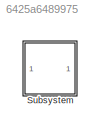
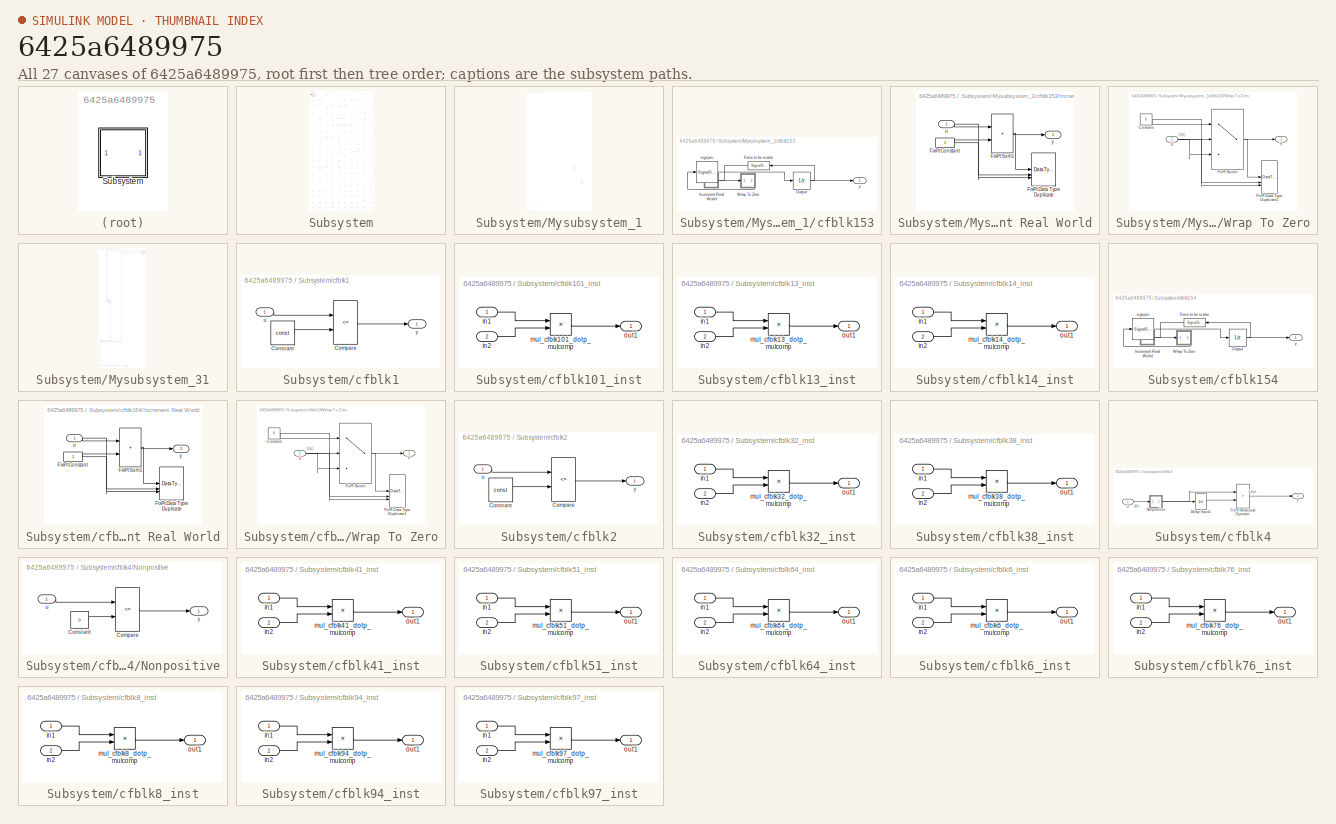
[diagram: thumbnail index - all 27 canvases of the model, root first then tree order]
MODEL slx_6425a6489975
KIND model
CONFIG AbsTol = auto
CONFIG EnableMultiTasking = off
CONFIG FixedStep = auto
CONFIG MaxStep = auto
CONFIG MinStep = auto
CONFIG RelTol = 1e-3
CONFIG SampleTimeConstraint = Unconstrained
CONFIG SolverName = VariableStepAuto
CONFIG StartTime = 0.0
CONFIG StopTime = 10.0
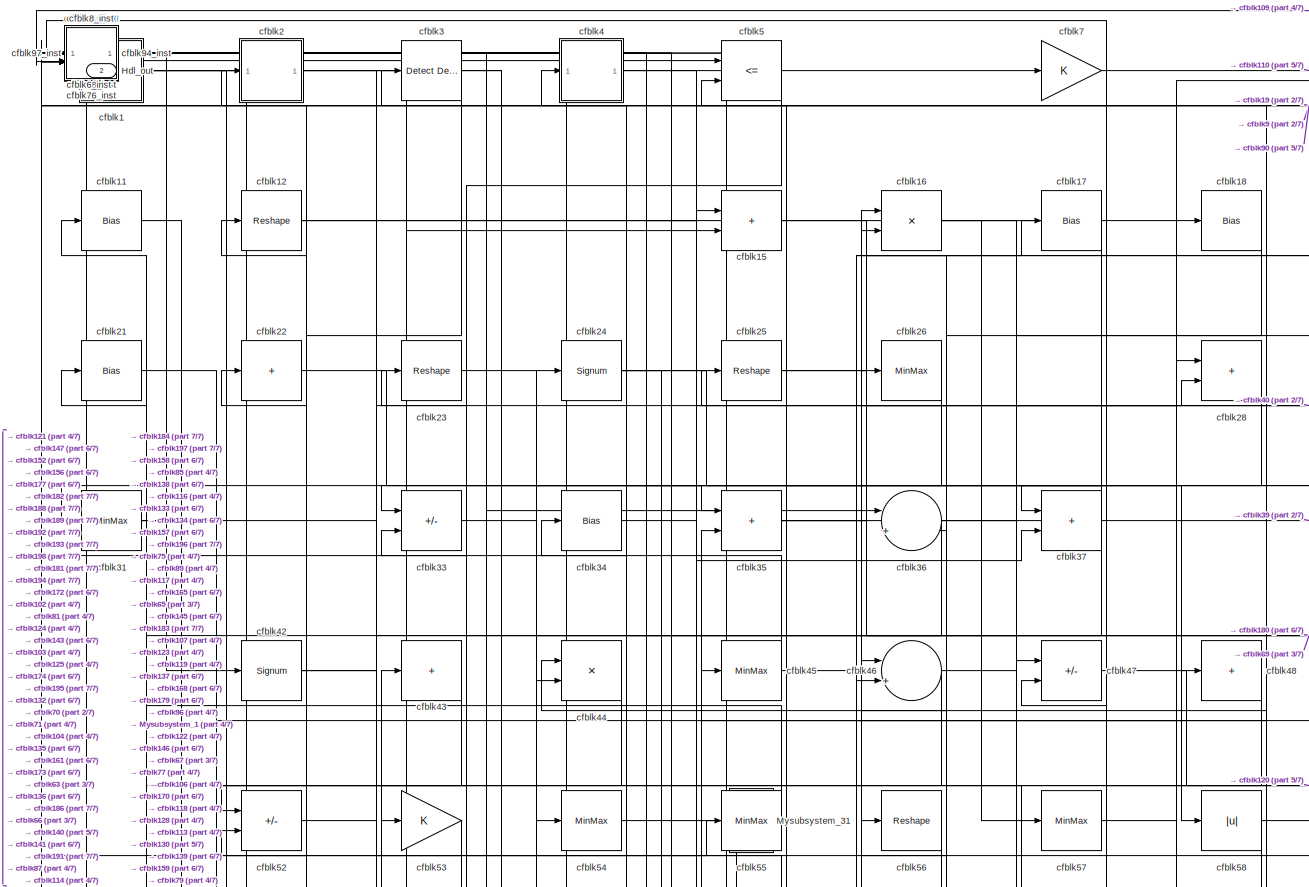
[diagram: Subsystem - part 1/7, full width, top band]
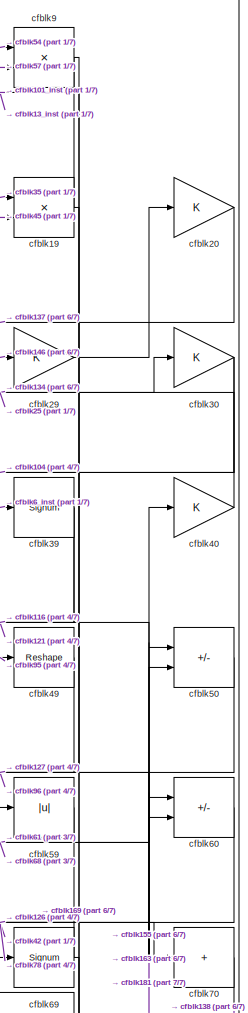
[diagram: Subsystem - part 2/7, top right region]
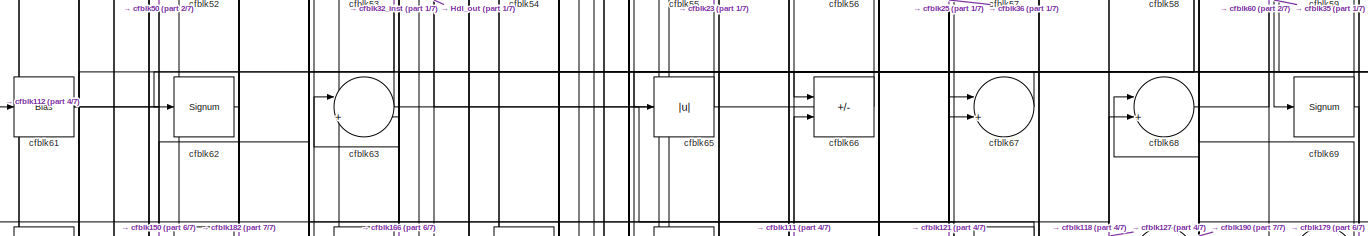
[diagram: Subsystem - part 3/7, full width, middle band]
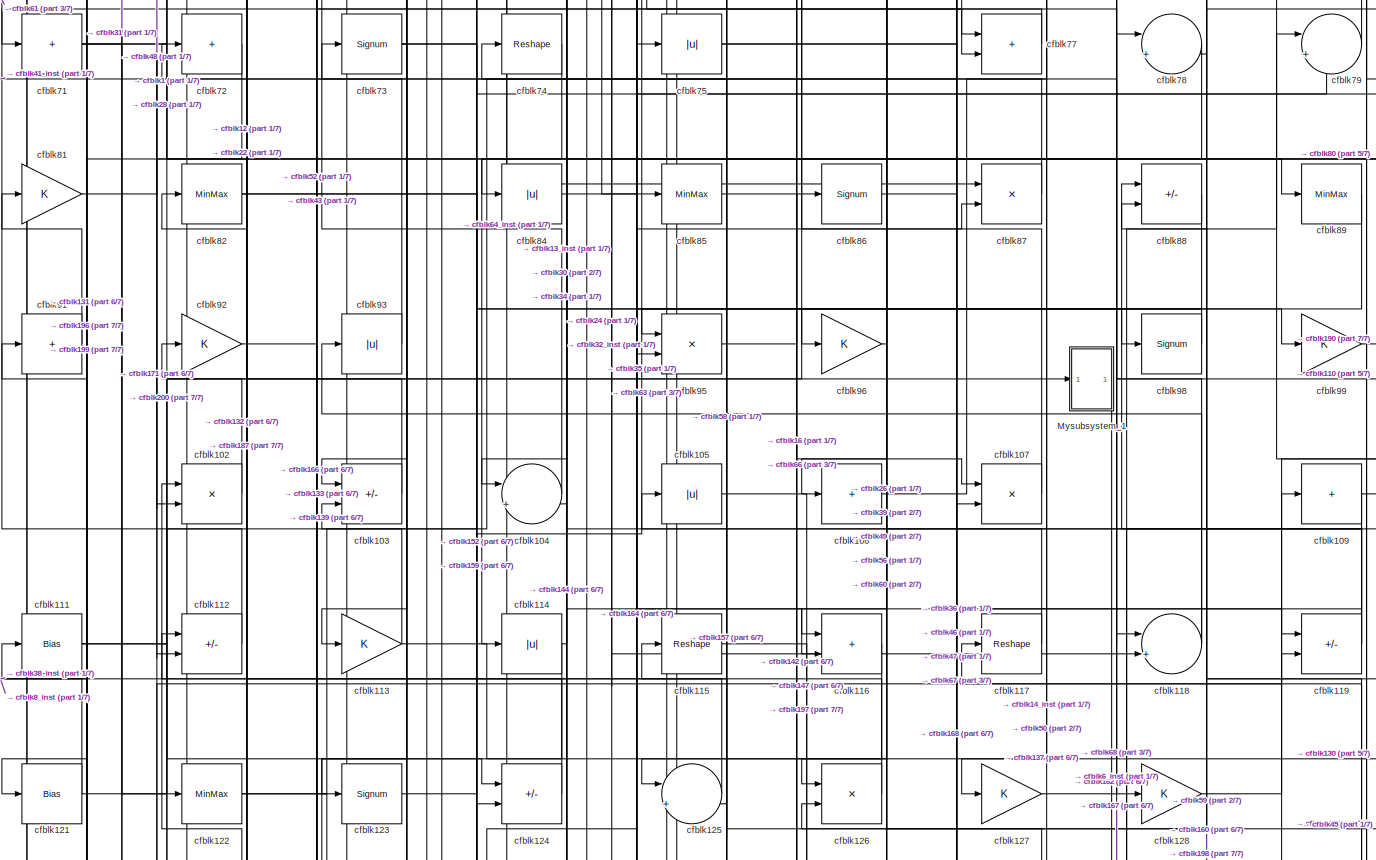
[diagram: Subsystem - part 4/7, full width, middle band]
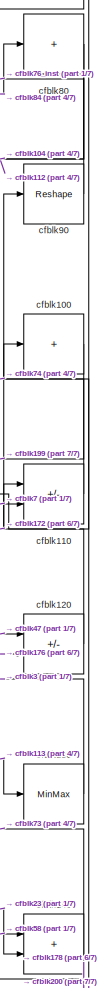
[diagram: Subsystem - part 5/7, middle right region]
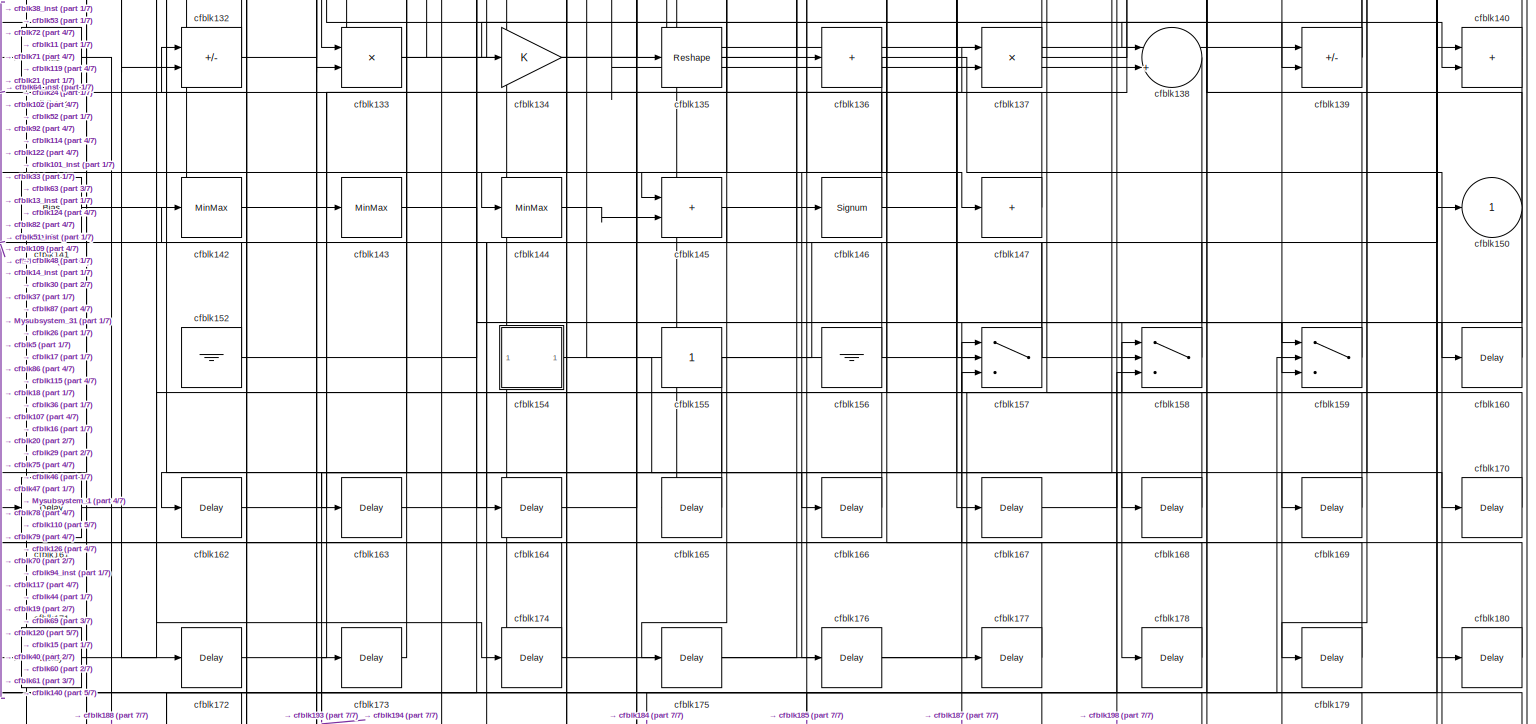
[diagram: Subsystem - part 6/7, full width, bottom band]
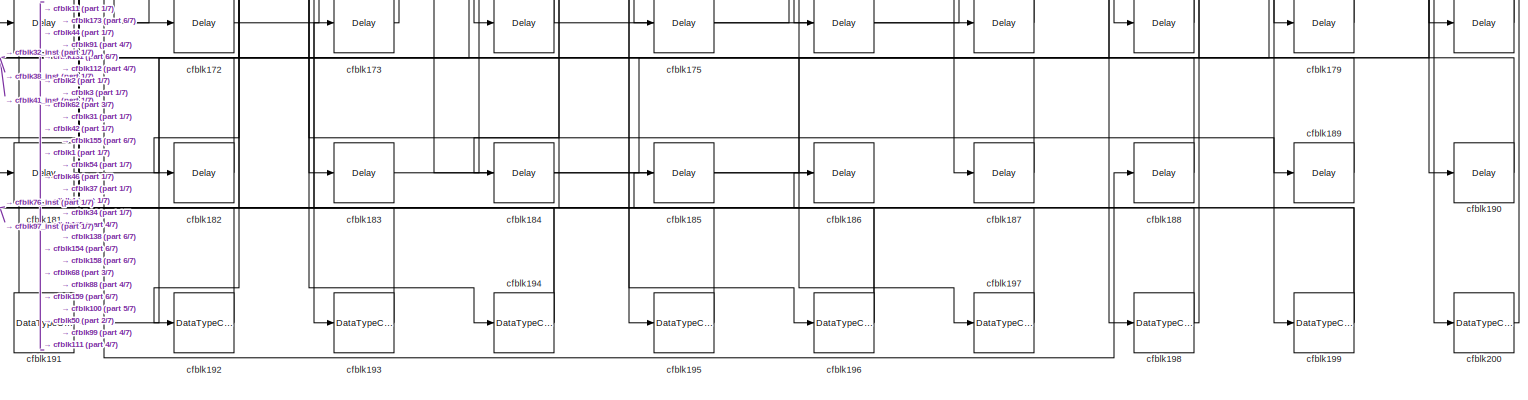
[diagram: Subsystem - part 7/7, full width, bottom band]
BLOCK [SubSystem] Subsystem
BLOCK [Outport] Subsystem/Hdl_out
  OutDataTypeStr = uint8
  Port = 2
  SampleTime = 1
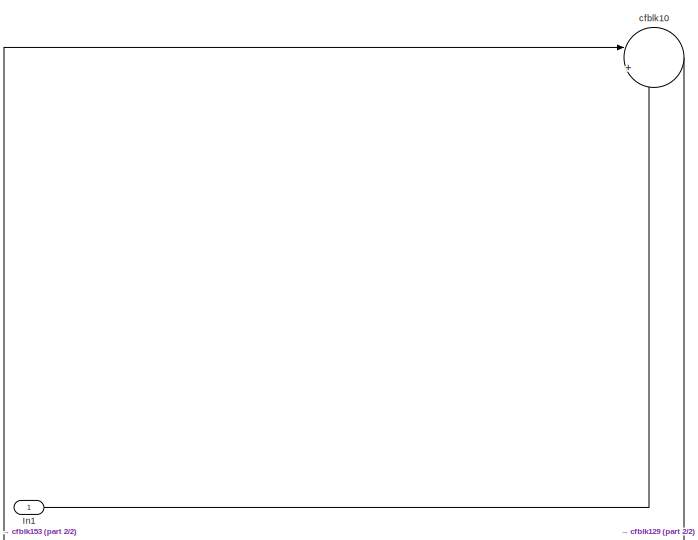
[diagram: Subsystem/Mysubsystem_1 - part 1/2, top right region]
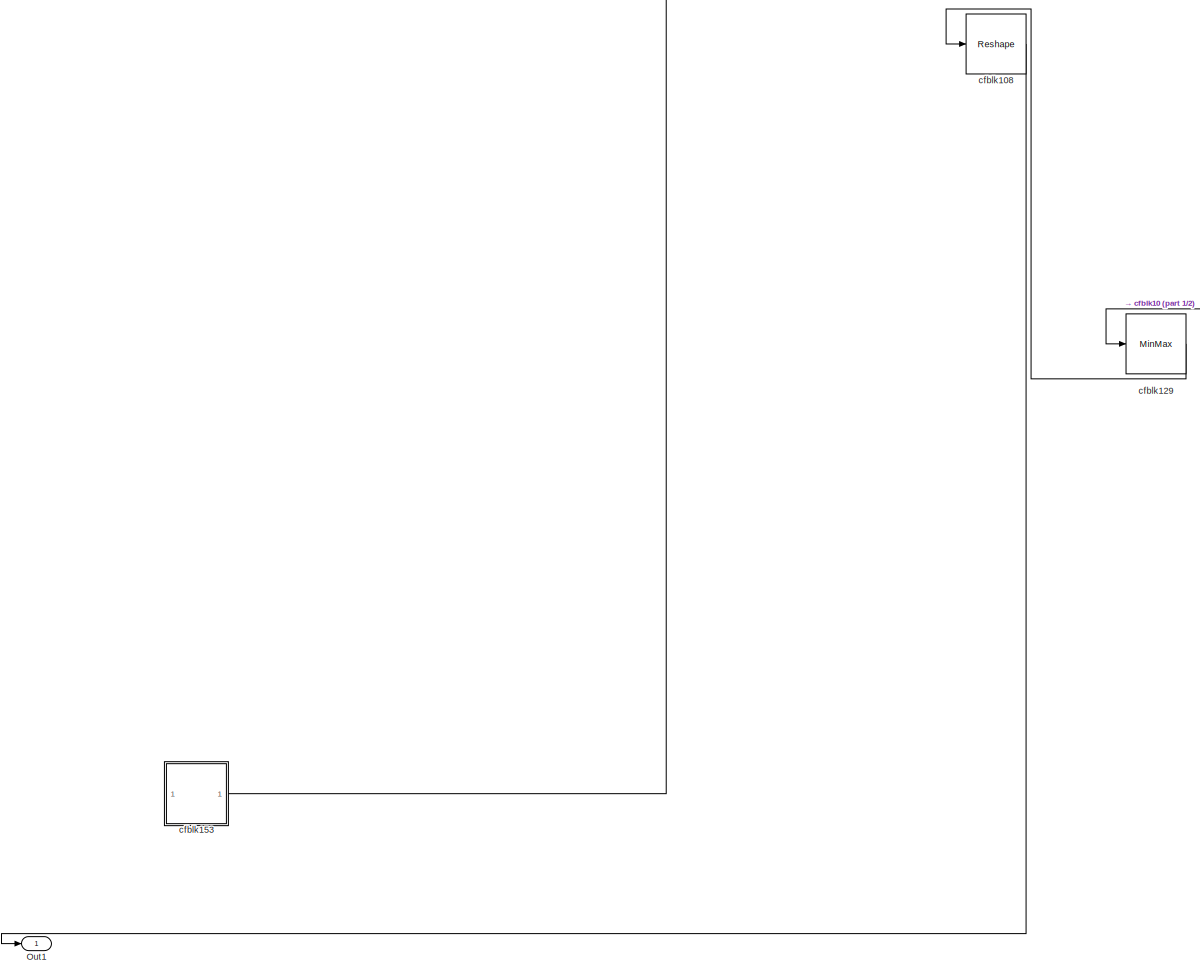
[diagram: Subsystem/Mysubsystem_1 - part 2/2, full width, bottom band]
BLOCK [SubSystem] Subsystem/Mysubsystem_1
BLOCK [Inport] Subsystem/Mysubsystem_1/In1
  OutDataTypeStr = uint8
  PortDimensions = 1
  SampleTime = 1
BLOCK [Outport] Subsystem/Mysubsystem_1/Out1
  SampleTime = 1
BLOCK [Sum] Subsystem/Mysubsystem_1/cfblk10
  Inputs = |++
BLOCK [Reshape] Subsystem/Mysubsystem_1/cfblk108
BLOCK [MinMax] Subsystem/Mysubsystem_1/cfblk129
BLOCK [SubSystem] Subsystem/Mysubsystem_1/cfblk153
BLOCK [SignalSpecification] Subsystem/Mysubsystem_1/cfblk153/Force to be scalar
  Dimensions = 1
  DisableCoverage = on
BLOCK [SubSystem] Subsystem/Mysubsystem_1/cfblk153/Increment Real World
BLOCK [Constant] Subsystem/Mysubsystem_1/cfblk153/Increment Real World/FixPt Constant
  DisableCoverage = on
  OutDataTypeStr = Inherit: Inherit via back propagation
  SampleTime = -1
BLOCK [DataTypeDuplicate] Subsystem/Mysubsystem_1/cfblk153/Increment Real World/FixPt Data Type Duplicate
  DisableCoverage = on
  NumInputPorts = 3
BLOCK [Sum] Subsystem/Mysubsystem_1/cfblk153/Increment Real World/FixPt Sum1
  IconShape = rectangular
  InputSameDT = on
  LockScale = on
  OutDataTypeStr = Inherit: Inherit via back propagation
BLOCK [Inport] Subsystem/Mysubsystem_1/cfblk153/Increment Real World/u
  OutDataTypeStr = uint16
  SampleTime = 1
BLOCK [Outport] Subsystem/Mysubsystem_1/cfblk153/Increment Real World/y
  SampleTime = 1
BLOCK [UnitDelay] Subsystem/Mysubsystem_1/cfblk153/Output
  HasFrameUpgradeWarning = on
  InitialCondition = 0.0
  SampleTime = tsamp
BLOCK [SubSystem] Subsystem/Mysubsystem_1/cfblk153/Wrap To Zero
BLOCK [Constant] Subsystem/Mysubsystem_1/cfblk153/Wrap To Zero/Constant
  DisableCoverage = on
  OutDataTypeStr = Inherit: Inherit via back propagation
  SampleTime = -1
  Value = 0
BLOCK [DataTypeDuplicate] Subsystem/Mysubsystem_1/cfblk153/Wrap To Zero/FixPt Data Type Duplicate1
  DisableCoverage = on
  NumInputPorts = 3
BLOCK [Switch] Subsystem/Mysubsystem_1/cfblk153/Wrap To Zero/FixPt Switch
  Criteria = u2 > Threshold
  InputSameDT = off
  OutDataTypeStr = Inherit: Inherit via back propagation
  SaturateOnIntegerOverflow = off
  Threshold = Threshold
  ZeroCross = off
BLOCK [Inport] Subsystem/Mysubsystem_1/cfblk153/Wrap To Zero/U
  OutDataTypeStr = uint16
  SampleTime = 1
BLOCK [Outport] Subsystem/Mysubsystem_1/cfblk153/Wrap To Zero/Y
  SampleTime = 1
BLOCK [SignalSpecification] Subsystem/Mysubsystem_1/cfblk153/sigspec
  Dimensions = 1
  OutDataTypeStr = uint16
BLOCK [Outport] Subsystem/Mysubsystem_1/cfblk153/y
  SampleTime = 1
BLOCK [SubSystem] Subsystem/Mysubsystem_31
BLOCK [Inport] Subsystem/Mysubsystem_31/In1
  OutDataTypeStr = uint8
  PortDimensions = 1
  SampleTime = 1
BLOCK [Outport] Subsystem/Mysubsystem_31/Out1
  SampleTime = 1
BLOCK [Bias] Subsystem/Mysubsystem_31/cfblk27
  Bias = 0.0
  SaturateOnIntegerOverflow = off
BLOCK [Reshape] Subsystem/Mysubsystem_31/cfblk83
BLOCK [SubSystem] Subsystem/cfblk1
BLOCK [RelationalOperator] Subsystem/cfblk1/Compare
  Operator = <=
  OutDataTypeStr = fixdt(0, 8)
BLOCK [Constant] Subsystem/cfblk1/Constant
  DisableCoverage = on
  OutDataTypeStr = Inherit: Inherit via back propagation
  SampleTime = -1
  Value = const
BLOCK [Inport] Subsystem/cfblk1/u
  OutDataTypeStr = uint8
  SampleTime = 1
BLOCK [Outport] Subsystem/cfblk1/y
  SampleTime = 1
BLOCK [Sum] Subsystem/cfblk100
  IconShape = rectangular
  Inputs = +
  OutDataTypeStr = uint8
BLOCK [SubSystem] Subsystem/cfblk101_inst
BLOCK [Inport] Subsystem/cfblk101_inst/in1
  OutDataTypeStr = uint8
  SampleTime = 1
BLOCK [Inport] Subsystem/cfblk101_inst/in2
  OutDataTypeStr = uint8
  Port = 2
  SampleTime = 1
BLOCK [Product] Subsystem/cfblk101_inst/mul_cfblk101_dotp_mulcomp
  Inputs = **
  OutDataTypeStr = uint8
  SampleTime = 1
BLOCK [Outport] Subsystem/cfblk101_inst/out1
  OutDataTypeStr = uint8
  SampleTime = 1
BLOCK [Product] Subsystem/cfblk102
  Inputs = */
  OutDataTypeStr = uint8
  RndMeth = Zero
  SaturateOnIntegerOverflow = on
BLOCK [Sum] Subsystem/cfblk103
  IconShape = rectangular
  Inputs = +-
  OutDataTypeStr = uint8
BLOCK [Sum] Subsystem/cfblk104
  Inputs = |++
  OutDataTypeStr = uint8
BLOCK [Abs] Subsystem/cfblk105
  OutDataTypeStr = uint8
  SaturateOnIntegerOverflow = off
BLOCK [Sum] Subsystem/cfblk106
  IconShape = rectangular
  Inputs = +
  OutDataTypeStr = uint8
BLOCK [Product] Subsystem/cfblk107
  Inputs = */
  OutDataTypeStr = uint8
  RndMeth = Zero
  SaturateOnIntegerOverflow = on
BLOCK [Sum] Subsystem/cfblk109
  IconShape = rectangular
  Inputs = +
  OutDataTypeStr = uint8
BLOCK [Bias] Subsystem/cfblk11
  Bias = 0.0
  SaturateOnIntegerOverflow = off
BLOCK [Sum] Subsystem/cfblk110
  IconShape = rectangular
  Inputs = +-
  OutDataTypeStr = uint8
BLOCK [Bias] Subsystem/cfblk111
  Bias = 0.0
  SaturateOnIntegerOverflow = off
BLOCK [Sum] Subsystem/cfblk112
  IconShape = rectangular
  Inputs = +-
  OutDataTypeStr = uint8
BLOCK [Gain] Subsystem/cfblk113
  OutDataTypeStr = uint8
BLOCK [Abs] Subsystem/cfblk114
  OutDataTypeStr = uint8
  SaturateOnIntegerOverflow = off
BLOCK [Reshape] Subsystem/cfblk115
BLOCK [Sum] Subsystem/cfblk116
  IconShape = rectangular
  OutDataTypeStr = uint8
BLOCK [Reshape] Subsystem/cfblk117
BLOCK [Sum] Subsystem/cfblk118
  Inputs = |++
  OutDataTypeStr = uint8
BLOCK [Sum] Subsystem/cfblk119
  IconShape = rectangular
  Inputs = +-
  OutDataTypeStr = uint8
BLOCK [Reshape] Subsystem/cfblk12
BLOCK [Sum] Subsystem/cfblk120
  IconShape = rectangular
  Inputs = +-
  OutDataTypeStr = uint8
BLOCK [Bias] Subsystem/cfblk121
  Bias = 0.0
  SaturateOnIntegerOverflow = off
BLOCK [MinMax] Subsystem/cfblk122
  OutDataTypeStr = uint8
BLOCK [Signum] Subsystem/cfblk123
BLOCK [Sum] Subsystem/cfblk124
  IconShape = rectangular
  Inputs = +-
  OutDataTypeStr = uint8
BLOCK [Sum] Subsystem/cfblk125
  Inputs = |++
  OutDataTypeStr = uint8
BLOCK [Product] Subsystem/cfblk126
  Inputs = */
  OutDataTypeStr = uint8
  RndMeth = Zero
  SaturateOnIntegerOverflow = on
BLOCK [Gain] Subsystem/cfblk127
  OutDataTypeStr = uint8
BLOCK [Gain] Subsystem/cfblk128
  OutDataTypeStr = uint8
BLOCK [MinMax] Subsystem/cfblk130
  OutDataTypeStr = uint8
BLOCK [Bias] Subsystem/cfblk131
  Bias = 0.0
  SaturateOnIntegerOverflow = off
BLOCK [Sum] Subsystem/cfblk132
  IconShape = rectangular
  Inputs = +-
  OutDataTypeStr = uint8
BLOCK [Product] Subsystem/cfblk133
  Inputs = */
  OutDataTypeStr = uint8
  RndMeth = Zero
  SaturateOnIntegerOverflow = on
BLOCK [Gain] Subsystem/cfblk134
  OutDataTypeStr = uint8
BLOCK [Reshape] Subsystem/cfblk135
BLOCK [Sum] Subsystem/cfblk136
  IconShape = rectangular
  Inputs = +
  OutDataTypeStr = uint8
BLOCK [Product] Subsystem/cfblk137
  Inputs = */
  OutDataTypeStr = uint8
  RndMeth = Zero
  SaturateOnIntegerOverflow = on
BLOCK [Sum] Subsystem/cfblk138
  Inputs = |++
  OutDataTypeStr = uint8
BLOCK [Sum] Subsystem/cfblk139
  IconShape = rectangular
  Inputs = +-
  OutDataTypeStr = uint8
BLOCK [SubSystem] Subsystem/cfblk13_inst
BLOCK [Inport] Subsystem/cfblk13_inst/in1
  OutDataTypeStr = uint8
  SampleTime = 1
BLOCK [Inport] Subsystem/cfblk13_inst/in2
  OutDataTypeStr = uint8
  Port = 2
  SampleTime = 1
BLOCK [Product] Subsystem/cfblk13_inst/mul_cfblk13_dotp_mulcomp
  Inputs = **
  OutDataTypeStr = uint8
  SampleTime = 1
BLOCK [Outport] Subsystem/cfblk13_inst/out1
  OutDataTypeStr = uint8
  SampleTime = 1
BLOCK [Sum] Subsystem/cfblk140
  IconShape = rectangular
  OutDataTypeStr = uint8
BLOCK [Bias] Subsystem/cfblk141
  Bias = 0.0
  SaturateOnIntegerOverflow = off
BLOCK [MinMax] Subsystem/cfblk142
  OutDataTypeStr = uint8
BLOCK [MinMax] Subsystem/cfblk143
  OutDataTypeStr = uint8
BLOCK [MinMax] Subsystem/cfblk144
  OutDataTypeStr = uint8
BLOCK [Sum] Subsystem/cfblk145
  IconShape = rectangular
  OutDataTypeStr = uint8
BLOCK [Signum] Subsystem/cfblk146
BLOCK [Sum] Subsystem/cfblk147
  IconShape = rectangular
  Inputs = +
  OutDataTypeStr = uint8
BLOCK [SubSystem] Subsystem/cfblk14_inst
BLOCK [Inport] Subsystem/cfblk14_inst/in1
  OutDataTypeStr = uint8
  SampleTime = 1
BLOCK [Inport] Subsystem/cfblk14_inst/in2
  OutDataTypeStr = uint8
  Port = 2
  SampleTime = 1
BLOCK [Product] Subsystem/cfblk14_inst/mul_cfblk14_dotp_mulcomp
  Inputs = **
  OutDataTypeStr = uint8
  SampleTime = 1
BLOCK [Outport] Subsystem/cfblk14_inst/out1
  OutDataTypeStr = uint8
  SampleTime = 1
BLOCK [Sum] Subsystem/cfblk15
  IconShape = rectangular
  OutDataTypeStr = uint8
BLOCK [Outport] Subsystem/cfblk150
  OutDataTypeStr = uint8
  SampleTime = 1
  VectorParamsAs1DForOutWhenUnconnected = off
BLOCK [Ground] Subsystem/cfblk152
BLOCK [SubSystem] Subsystem/cfblk154
BLOCK [SignalSpecification] Subsystem/cfblk154/Force to be scalar
  Dimensions = 1
  DisableCoverage = on
BLOCK [SubSystem] Subsystem/cfblk154/Increment Real World
BLOCK [Constant] Subsystem/cfblk154/Increment Real World/FixPt Constant
  DisableCoverage = on
  OutDataTypeStr = Inherit: Inherit via back propagation
  SampleTime = -1
BLOCK [DataTypeDuplicate] Subsystem/cfblk154/Increment Real World/FixPt Data Type Duplicate
  DisableCoverage = on
  NumInputPorts = 3
BLOCK [Sum] Subsystem/cfblk154/Increment Real World/FixPt Sum1
  IconShape = rectangular
  InputSameDT = on
  LockScale = on
  OutDataTypeStr = Inherit: Inherit via back propagation
BLOCK [Inport] Subsystem/cfblk154/Increment Real World/u
  OutDataTypeStr = uint16
  SampleTime = 1
BLOCK [Outport] Subsystem/cfblk154/Increment Real World/y
  SampleTime = 1
BLOCK [UnitDelay] Subsystem/cfblk154/Output
  HasFrameUpgradeWarning = on
  InitialCondition = 0.0
  SampleTime = tsamp
BLOCK [SubSystem] Subsystem/cfblk154/Wrap To Zero
BLOCK [Constant] Subsystem/cfblk154/Wrap To Zero/Constant
  DisableCoverage = on
  OutDataTypeStr = Inherit: Inherit via back propagation
  SampleTime = -1
  Value = 0
BLOCK [DataTypeDuplicate] Subsystem/cfblk154/Wrap To Zero/FixPt Data Type Duplicate1
  DisableCoverage = on
  NumInputPorts = 3
BLOCK [Switch] Subsystem/cfblk154/Wrap To Zero/FixPt Switch
  Criteria = u2 > Threshold
  InputSameDT = off
  OutDataTypeStr = Inherit: Inherit via back propagation
  SaturateOnIntegerOverflow = off
  Threshold = Threshold
  ZeroCross = off
BLOCK [Inport] Subsystem/cfblk154/Wrap To Zero/U
  OutDataTypeStr = uint16
  SampleTime = 1
BLOCK [Outport] Subsystem/cfblk154/Wrap To Zero/Y
  SampleTime = 1
BLOCK [SignalSpecification] Subsystem/cfblk154/sigspec
  Dimensions = 1
  OutDataTypeStr = uint16
BLOCK [Outport] Subsystem/cfblk154/y
  SampleTime = 1
BLOCK [Constant] Subsystem/cfblk155
  OutDataTypeStr = uint8
  SampleTime = -1
BLOCK [Ground] Subsystem/cfblk156
BLOCK [Switch] Subsystem/cfblk157
  InputSameDT = off
  OutDataTypeStr = uint8
  SaturateOnIntegerOverflow = off
BLOCK [Switch] Subsystem/cfblk158
  InputSameDT = off
  OutDataTypeStr = uint8
  SaturateOnIntegerOverflow = off
BLOCK [Switch] Subsystem/cfblk159
  InputSameDT = off
  OutDataTypeStr = uint8
  SaturateOnIntegerOverflow = off
BLOCK [Product] Subsystem/cfblk16
  Inputs = */
  OutDataTypeStr = uint8
  RndMeth = Zero
  SaturateOnIntegerOverflow = on
BLOCK [Delay] Subsystem/cfblk160
  InputPortMap = u0
  SampleTime = 1
BLOCK [Delay] Subsystem/cfblk161
  InputPortMap = u0
  SampleTime = 1
BLOCK [Delay] Subsystem/cfblk162
  InputPortMap = u0
  SampleTime = 1
BLOCK [Delay] Subsystem/cfblk163
  InputPortMap = u0
  SampleTime = 1
BLOCK [Delay] Subsystem/cfblk164
  InputPortMap = u0
  SampleTime = 1
BLOCK [Delay] Subsystem/cfblk165
  InputPortMap = u0
  SampleTime = 1
BLOCK [Delay] Subsystem/cfblk166
  InputPortMap = u0
  SampleTime = 1
BLOCK [Delay] Subsystem/cfblk167
  InputPortMap = u0
  SampleTime = 1
BLOCK [Delay] Subsystem/cfblk168
  InputPortMap = u0
  SampleTime = 1
BLOCK [Delay] Subsystem/cfblk169
  InputPortMap = u0
  SampleTime = 1
BLOCK [Bias] Subsystem/cfblk17
  Bias = 0.0
  SaturateOnIntegerOverflow = off
BLOCK [Delay] Subsystem/cfblk170
  InputPortMap = u0
  SampleTime = 1
BLOCK [Delay] Subsystem/cfblk171
  InputPortMap = u0
  SampleTime = 1
BLOCK [Delay] Subsystem/cfblk172
  InputPortMap = u0
  SampleTime = 1
BLOCK [Delay] Subsystem/cfblk173
  InputPortMap = u0
  SampleTime = 1
BLOCK [Delay] Subsystem/cfblk174
  InputPortMap = u0
  SampleTime = 1
BLOCK [Delay] Subsystem/cfblk175
  InputPortMap = u0
  SampleTime = 1
BLOCK [Delay] Subsystem/cfblk176
  InputPortMap = u0
  SampleTime = 1
BLOCK [Delay] Subsystem/cfblk177
  InputPortMap = u0
  SampleTime = 1
BLOCK [Delay] Subsystem/cfblk178
  InputPortMap = u0
  SampleTime = 1
BLOCK [Delay] Subsystem/cfblk179
  InputPortMap = u0
  SampleTime = 1
BLOCK [Bias] Subsystem/cfblk18
  Bias = 0.0
  SaturateOnIntegerOverflow = off
BLOCK [Delay] Subsystem/cfblk180
  InputPortMap = u0
  SampleTime = 1
BLOCK [Delay] Subsystem/cfblk181
  InputPortMap = u0
  SampleTime = 1
BLOCK [Delay] Subsystem/cfblk182
  InputPortMap = u0
  SampleTime = 1
BLOCK [Delay] Subsystem/cfblk183
  InputPortMap = u0
  SampleTime = 1
BLOCK [Delay] Subsystem/cfblk184
  InputPortMap = u0
  SampleTime = 1
BLOCK [Delay] Subsystem/cfblk185
  InputPortMap = u0
  SampleTime = 1
BLOCK [Delay] Subsystem/cfblk186
  InputPortMap = u0
  SampleTime = 1
BLOCK [Delay] Subsystem/cfblk187
  InputPortMap = u0
  SampleTime = 1
BLOCK [Delay] Subsystem/cfblk188
  InputPortMap = u0
  SampleTime = 1
BLOCK [Delay] Subsystem/cfblk189
  InputPortMap = u0
  SampleTime = 1
BLOCK [Product] Subsystem/cfblk19
  Inputs = */
  OutDataTypeStr = uint8
  RndMeth = Zero
  SaturateOnIntegerOverflow = on
BLOCK [Delay] Subsystem/cfblk190
  InputPortMap = u0
  SampleTime = 1
BLOCK [DataTypeConversion] Subsystem/cfblk191
  OutDataTypeStr = uint8
  RndMeth = Floor
  SaturateOnIntegerOverflow = off
BLOCK [DataTypeConversion] Subsystem/cfblk192
  OutDataTypeStr = uint8
  RndMeth = Floor
  SaturateOnIntegerOverflow = off
BLOCK [DataTypeConversion] Subsystem/cfblk193
  OutDataTypeStr = uint8
  RndMeth = Floor
  SaturateOnIntegerOverflow = off
BLOCK [DataTypeConversion] Subsystem/cfblk194
  OutDataTypeStr = uint8
  RndMeth = Floor
  SaturateOnIntegerOverflow = off
BLOCK [DataTypeConversion] Subsystem/cfblk195
  OutDataTypeStr = uint8
  RndMeth = Floor
  SaturateOnIntegerOverflow = off
BLOCK [DataTypeConversion] Subsystem/cfblk196
  OutDataTypeStr = uint8
  RndMeth = Floor
  SaturateOnIntegerOverflow = off
BLOCK [DataTypeConversion] Subsystem/cfblk197
  OutDataTypeStr = uint8
  RndMeth = Floor
  SaturateOnIntegerOverflow = off
BLOCK [DataTypeConversion] Subsystem/cfblk198
  OutDataTypeStr = uint8
  RndMeth = Floor
  SaturateOnIntegerOverflow = off
BLOCK [DataTypeConversion] Subsystem/cfblk199
  OutDataTypeStr = uint8
  RndMeth = Floor
  SaturateOnIntegerOverflow = off
BLOCK [SubSystem] Subsystem/cfblk2
BLOCK [RelationalOperator] Subsystem/cfblk2/Compare
  Operator = <=
  OutDataTypeStr = fixdt(0, 8)
BLOCK [Constant] Subsystem/cfblk2/Constant
  DisableCoverage = on
  OutDataTypeStr = Inherit: Inherit via back propagation
  SampleTime = -1
  Value = const
BLOCK [Inport] Subsystem/cfblk2/u
  OutDataTypeStr = uint8
  SampleTime = 1
BLOCK [Outport] Subsystem/cfblk2/y
  SampleTime = 1
BLOCK [Gain] Subsystem/cfblk20
  OutDataTypeStr = uint8
BLOCK [DataTypeConversion] Subsystem/cfblk200
  OutDataTypeStr = uint8
  RndMeth = Floor
  SaturateOnIntegerOverflow = off
BLOCK [Bias] Subsystem/cfblk21
  Bias = 0.0
  SaturateOnIntegerOverflow = off
BLOCK [Sum] Subsystem/cfblk22
  IconShape = rectangular
  Inputs = +
  OutDataTypeStr = uint8
BLOCK [Reshape] Subsystem/cfblk23
BLOCK [Signum] Subsystem/cfblk24
BLOCK [Reshape] Subsystem/cfblk25
BLOCK [MinMax] Subsystem/cfblk26
  OutDataTypeStr = uint8
BLOCK [Sum] Subsystem/cfblk28
  IconShape = rectangular
  OutDataTypeStr = uint8
BLOCK [Gain] Subsystem/cfblk29
  OutDataTypeStr = uint8
BLOCK [Reference] Subsystem/cfblk3  REF=simulink/Logic and Bit
Operations/Detect
Decrease
  LibrarySourceBlock = hdlsllib/Logic and Bit\nOperations/Detect\nDecrease
  SourceBlock = simulink/Logic and Bit\nOperations/Detect\nDecrease
  SourceType = Detect Decrease
BLOCK [Gain] Subsystem/cfblk30
  OutDataTypeStr = uint8
BLOCK [MinMax] Subsystem/cfblk31
  OutDataTypeStr = uint8
BLOCK [SubSystem] Subsystem/cfblk32_inst
BLOCK [Inport] Subsystem/cfblk32_inst/in1
  OutDataTypeStr = uint8
  SampleTime = 1
BLOCK [Inport] Subsystem/cfblk32_inst/in2
  OutDataTypeStr = uint8
  Port = 2
  SampleTime = 1
BLOCK [Product] Subsystem/cfblk32_inst/mul_cfblk32_dotp_mulcomp
  Inputs = **
  OutDataTypeStr = uint8
  SampleTime = 1
BLOCK [Outport] Subsystem/cfblk32_inst/out1
  OutDataTypeStr = uint8
  SampleTime = 1
BLOCK [Sum] Subsystem/cfblk33
  IconShape = rectangular
  Inputs = +-
  OutDataTypeStr = uint8
BLOCK [Bias] Subsystem/cfblk34
  Bias = 0.0
  SaturateOnIntegerOverflow = off
BLOCK [Sum] Subsystem/cfblk35
  IconShape = rectangular
  OutDataTypeStr = uint8
BLOCK [Sum] Subsystem/cfblk36
  Inputs = |++
  OutDataTypeStr = uint8
BLOCK [Sum] Subsystem/cfblk37
  IconShape = rectangular
  OutDataTypeStr = uint8
BLOCK [SubSystem] Subsystem/cfblk38_inst
BLOCK [Inport] Subsystem/cfblk38_inst/in1
  OutDataTypeStr = uint8
  SampleTime = 1
BLOCK [Inport] Subsystem/cfblk38_inst/in2
  OutDataTypeStr = uint8
  Port = 2
  SampleTime = 1
BLOCK [Product] Subsystem/cfblk38_inst/mul_cfblk38_dotp_mulcomp
  Inputs = **
  OutDataTypeStr = uint8
  SampleTime = 1
BLOCK [Outport] Subsystem/cfblk38_inst/out1
  OutDataTypeStr = uint8
  SampleTime = 1
BLOCK [Signum] Subsystem/cfblk39
BLOCK [SubSystem] Subsystem/cfblk4
BLOCK [UnitDelay] Subsystem/cfblk4/Delay Input1
  Description = Store in Global RAM
  DisableCoverage = on
  HasFrameUpgradeWarning = on
  InitialCondition = vinit
  SampleTime = -1
BLOCK [RelationalOperator] Subsystem/cfblk4/FixPt Relational Operator
  InputSameDT = off
  Operator = >
  OutDataTypeStr = fixdt(0, 8)
  ZeroCross = off
BLOCK [SubSystem] Subsystem/cfblk4/Nonpositive
BLOCK [RelationalOperator] Subsystem/cfblk4/Nonpositive/Compare
  Operator = <=
  OutDataTypeStr = boolean
  ZeroCross = off
BLOCK [Constant] Subsystem/cfblk4/Nonpositive/Constant
  DisableCoverage = on
  OutDataTypeStr = Inherit: Inherit via back propagation
  PreserveConstantTs = on
  SampleTime = -1
  Value = 0
BLOCK [Inport] Subsystem/cfblk4/Nonpositive/u
  OutDataTypeStr = uint8
  SampleTime = 1
BLOCK [Outport] Subsystem/cfblk4/Nonpositive/y
  SampleTime = 1
BLOCK [Inport] Subsystem/cfblk4/U
  OutDataTypeStr = uint8
  SampleTime = 1
BLOCK [Outport] Subsystem/cfblk4/Y
  SampleTime = 1
BLOCK [Gain] Subsystem/cfblk40
  OutDataTypeStr = uint8
BLOCK [SubSystem] Subsystem/cfblk41_inst
BLOCK [Inport] Subsystem/cfblk41_inst/in1
  OutDataTypeStr = uint8
  SampleTime = 1
BLOCK [Inport] Subsystem/cfblk41_inst/in2
  OutDataTypeStr = uint8
  Port = 2
  SampleTime = 1
BLOCK [Product] Subsystem/cfblk41_inst/mul_cfblk41_dotp_mulcomp
  Inputs = **
  OutDataTypeStr = uint8
  SampleTime = 1
BLOCK [Outport] Subsystem/cfblk41_inst/out1
  OutDataTypeStr = uint8
  SampleTime = 1
BLOCK [Signum] Subsystem/cfblk42
BLOCK [Sum] Subsystem/cfblk43
  IconShape = rectangular
  Inputs = +
  OutDataTypeStr = uint8
BLOCK [Product] Subsystem/cfblk44
  Inputs = */
  OutDataTypeStr = uint8
  RndMeth = Zero
  SaturateOnIntegerOverflow = on
BLOCK [MinMax] Subsystem/cfblk45
  OutDataTypeStr = uint8
BLOCK [Sum] Subsystem/cfblk46
  Inputs = |++
  OutDataTypeStr = uint8
BLOCK [Sum] Subsystem/cfblk47
  IconShape = rectangular
  Inputs = +-
  OutDataTypeStr = uint8
BLOCK [Sum] Subsystem/cfblk48
  IconShape = rectangular
  Inputs = +
  OutDataTypeStr = uint8
BLOCK [Reshape] Subsystem/cfblk49
BLOCK [RelationalOperator] Subsystem/cfblk5
  InputSameDT = off
  Operator = <=
  OutDataTypeStr = boolean
BLOCK [Sum] Subsystem/cfblk50
  IconShape = rectangular
  Inputs = +-
  OutDataTypeStr = uint8
BLOCK [SubSystem] Subsystem/cfblk51_inst
BLOCK [Inport] Subsystem/cfblk51_inst/in1
  OutDataTypeStr = uint8
  SampleTime = 1
BLOCK [Inport] Subsystem/cfblk51_inst/in2
  OutDataTypeStr = uint8
  Port = 2
  SampleTime = 1
BLOCK [Product] Subsystem/cfblk51_inst/mul_cfblk51_dotp_mulcomp
  Inputs = **
  OutDataTypeStr = uint8
  SampleTime = 1
BLOCK [Outport] Subsystem/cfblk51_inst/out1
  OutDataTypeStr = uint8
  SampleTime = 1
BLOCK [Sum] Subsystem/cfblk52
  IconShape = rectangular
  Inputs = +-
  OutDataTypeStr = uint8
BLOCK [Gain] Subsystem/cfblk53
  OutDataTypeStr = uint8
BLOCK [MinMax] Subsystem/cfblk54
  OutDataTypeStr = uint8
BLOCK [MinMax] Subsystem/cfblk55
  OutDataTypeStr = uint8
BLOCK [Reshape] Subsystem/cfblk56
BLOCK [MinMax] Subsystem/cfblk57
  OutDataTypeStr = uint8
BLOCK [Abs] Subsystem/cfblk58
  OutDataTypeStr = uint8
  SaturateOnIntegerOverflow = off
BLOCK [Abs] Subsystem/cfblk59
  OutDataTypeStr = uint8
  SaturateOnIntegerOverflow = off
BLOCK [Sum] Subsystem/cfblk60
  IconShape = rectangular
  Inputs = +-
  OutDataTypeStr = uint8
BLOCK [Bias] Subsystem/cfblk61
  Bias = 0.0
  SaturateOnIntegerOverflow = off
BLOCK [Signum] Subsystem/cfblk62
BLOCK [Sum] Subsystem/cfblk63
  Inputs = |++
  OutDataTypeStr = uint8
BLOCK [SubSystem] Subsystem/cfblk64_inst
BLOCK [Inport] Subsystem/cfblk64_inst/in1
  OutDataTypeStr = uint8
  SampleTime = 1
BLOCK [Inport] Subsystem/cfblk64_inst/in2
  OutDataTypeStr = uint8
  Port = 2
  SampleTime = 1
BLOCK [Product] Subsystem/cfblk64_inst/mul_cfblk64_dotp_mulcomp
  Inputs = **
  OutDataTypeStr = uint8
  SampleTime = 1
BLOCK [Outport] Subsystem/cfblk64_inst/out1
  OutDataTypeStr = uint8
  SampleTime = 1
BLOCK [Abs] Subsystem/cfblk65
  OutDataTypeStr = uint8
  SaturateOnIntegerOverflow = off
BLOCK [Sum] Subsystem/cfblk66
  IconShape = rectangular
  Inputs = +-
  OutDataTypeStr = uint8
BLOCK [Sum] Subsystem/cfblk67
  Inputs = |++
  OutDataTypeStr = uint8
BLOCK [Sum] Subsystem/cfblk68
  Inputs = |++
  OutDataTypeStr = uint8
BLOCK [Signum] Subsystem/cfblk69
BLOCK [SubSystem] Subsystem/cfblk6_inst
BLOCK [Inport] Subsystem/cfblk6_inst/in1
  OutDataTypeStr = uint8
  SampleTime = 1
BLOCK [Inport] Subsystem/cfblk6_inst/in2
  OutDataTypeStr = uint8
  Port = 2
  SampleTime = 1
BLOCK [Product] Subsystem/cfblk6_inst/mul_cfblk6_dotp_mulcomp
  Inputs = **
  OutDataTypeStr = uint8
  SampleTime = 1
BLOCK [Outport] Subsystem/cfblk6_inst/out1
  OutDataTypeStr = uint8
  SampleTime = 1
BLOCK [Gain] Subsystem/cfblk7
  OutDataTypeStr = uint8
BLOCK [Sum] Subsystem/cfblk70
  IconShape = rectangular
  Inputs = +
  OutDataTypeStr = uint8
BLOCK [Sum] Subsystem/cfblk71
  IconShape = rectangular
  Inputs = +
  OutDataTypeStr = uint8
BLOCK [Sum] Subsystem/cfblk72
  IconShape = rectangular
  Inputs = +
  OutDataTypeStr = uint8
BLOCK [Signum] Subsystem/cfblk73
BLOCK [Reshape] Subsystem/cfblk74
BLOCK [Abs] Subsystem/cfblk75
  OutDataTypeStr = uint8
  SaturateOnIntegerOverflow = off
BLOCK [SubSystem] Subsystem/cfblk76_inst
BLOCK [Inport] Subsystem/cfblk76_inst/in1
  OutDataTypeStr = uint8
  SampleTime = 1
BLOCK [Inport] Subsystem/cfblk76_inst/in2
  OutDataTypeStr = uint8
  Port = 2
  SampleTime = 1
BLOCK [Product] Subsystem/cfblk76_inst/mul_cfblk76_dotp_mulcomp
  Inputs = **
  OutDataTypeStr = uint8
  SampleTime = 1
BLOCK [Outport] Subsystem/cfblk76_inst/out1
  OutDataTypeStr = uint8
  SampleTime = 1
BLOCK [Sum] Subsystem/cfblk77
  IconShape = rectangular
  OutDataTypeStr = uint8
BLOCK [Sum] Subsystem/cfblk78
  Inputs = |++
  OutDataTypeStr = uint8
BLOCK [Sum] Subsystem/cfblk79
  Inputs = |++
  OutDataTypeStr = uint8
BLOCK [Sum] Subsystem/cfblk80
  IconShape = rectangular
  Inputs = +
  OutDataTypeStr = uint8
BLOCK [Gain] Subsystem/cfblk81
  OutDataTypeStr = uint8
BLOCK [MinMax] Subsystem/cfblk82
  OutDataTypeStr = uint8
BLOCK [Abs] Subsystem/cfblk84
  OutDataTypeStr = uint8
  SaturateOnIntegerOverflow = off
BLOCK [MinMax] Subsystem/cfblk85
  OutDataTypeStr = uint8
BLOCK [Signum] Subsystem/cfblk86
BLOCK [Product] Subsystem/cfblk87
  Inputs = */
  OutDataTypeStr = uint8
  RndMeth = Zero
  SaturateOnIntegerOverflow = on
BLOCK [Sum] Subsystem/cfblk88
  IconShape = rectangular
  Inputs = +-
  OutDataTypeStr = uint8
BLOCK [MinMax] Subsystem/cfblk89
  OutDataTypeStr = uint8
BLOCK [SubSystem] Subsystem/cfblk8_inst
BLOCK [Inport] Subsystem/cfblk8_inst/in1
  OutDataTypeStr = uint8
  SampleTime = 1
BLOCK [Inport] Subsystem/cfblk8_inst/in2
  OutDataTypeStr = uint8
  Port = 2
  SampleTime = 1
BLOCK [Product] Subsystem/cfblk8_inst/mul_cfblk8_dotp_mulcomp
  Inputs = **
  OutDataTypeStr = uint8
  SampleTime = 1
BLOCK [Outport] Subsystem/cfblk8_inst/out1
  OutDataTypeStr = uint8
  SampleTime = 1
BLOCK [Product] Subsystem/cfblk9
  Inputs = */
  OutDataTypeStr = uint8
  RndMeth = Zero
  SaturateOnIntegerOverflow = on
BLOCK [Reshape] Subsystem/cfblk90
BLOCK [Sum] Subsystem/cfblk91
  IconShape = rectangular
  Inputs = +
  OutDataTypeStr = uint8
BLOCK [Gain] Subsystem/cfblk92
  OutDataTypeStr = uint8
BLOCK [Abs] Subsystem/cfblk93
  OutDataTypeStr = uint8
  SaturateOnIntegerOverflow = off
BLOCK [SubSystem] Subsystem/cfblk94_inst
BLOCK [Inport] Subsystem/cfblk94_inst/in1
  OutDataTypeStr = uint8
  SampleTime = 1
BLOCK [Inport] Subsystem/cfblk94_inst/in2
  OutDataTypeStr = uint8
  Port = 2
  SampleTime = 1
BLOCK [Product] Subsystem/cfblk94_inst/mul_cfblk94_dotp_mulcomp
  Inputs = **
  OutDataTypeStr = uint8
  SampleTime = 1
BLOCK [Outport] Subsystem/cfblk94_inst/out1
  OutDataTypeStr = uint8
  SampleTime = 1
BLOCK [Product] Subsystem/cfblk95
  Inputs = */
  OutDataTypeStr = uint8
  RndMeth = Zero
  SaturateOnIntegerOverflow = on
BLOCK [Gain] Subsystem/cfblk96
  OutDataTypeStr = uint8
BLOCK [SubSystem] Subsystem/cfblk97_inst
BLOCK [Inport] Subsystem/cfblk97_inst/in1
  OutDataTypeStr = uint8
  SampleTime = 1
BLOCK [Inport] Subsystem/cfblk97_inst/in2
  OutDataTypeStr = uint8
  Port = 2
  SampleTime = 1
BLOCK [Product] Subsystem/cfblk97_inst/mul_cfblk97_dotp_mulcomp
  Inputs = **
  OutDataTypeStr = uint8
  SampleTime = 1
BLOCK [Outport] Subsystem/cfblk97_inst/out1
  OutDataTypeStr = uint8
  SampleTime = 1
BLOCK [Signum] Subsystem/cfblk98
BLOCK [Gain] Subsystem/cfblk99
  OutDataTypeStr = uint8
ANNOTATION Subsystem/Mysubsystem_1/cfblk153/Wrap To Zero: U(k)
ANNOTATION Subsystem/cfblk154/Wrap To Zero: U(k)
ANNOTATION Subsystem/cfblk4: Edge
ANNOTATION Subsystem/cfblk4: U(k)
LINE Subsystem/Mysubsystem_1/In1:1 -> Subsystem/Mysubsystem_1/cfblk10:2
LINE Subsystem/Mysubsystem_1/cfblk108:1 -> Subsystem/Mysubsystem_1/Out1:1
LINE Subsystem/Mysubsystem_1/cfblk10:1 -> Subsystem/Mysubsystem_1/cfblk129:1
LINE Subsystem/Mysubsystem_1/cfblk129:1 -> Subsystem/Mysubsystem_1/cfblk108:1
LINE Subsystem/Mysubsystem_1/cfblk153:1 -> Subsystem/Mysubsystem_1/cfblk10:1
LINE Subsystem/Mysubsystem_1:1 -> Subsystem/cfblk162:1
LINE Subsystem/Mysubsystem_31/In1:1 -> Subsystem/Mysubsystem_31/cfblk27:1
LINE Subsystem/Mysubsystem_31/cfblk27:1 -> Subsystem/Mysubsystem_31/cfblk83:1
LINE Subsystem/Mysubsystem_31/cfblk83:1 -> Subsystem/Mysubsystem_31/Out1:1
LINE Subsystem/Mysubsystem_31:1 -> Subsystem/cfblk165:1
LINE Subsystem/cfblk100:1 -> Subsystem/cfblk199:1
LINE Subsystem/cfblk101_inst/in1:1 -> Subsystem/cfblk101_inst/mul_cfblk101_dotp_mulcomp:1
LINE Subsystem/cfblk101_inst/in2:1 -> Subsystem/cfblk101_inst/mul_cfblk101_dotp_mulcomp:2
LINE Subsystem/cfblk101_inst/mul_cfblk101_dotp_mulcomp:1 -> Subsystem/cfblk101_inst/out1:1
NET Subsystem/cfblk101_inst:1 -> Subsystem/cfblk135:1, Subsystem/cfblk15:2
LINE Subsystem/cfblk102:1 -> Subsystem/cfblk92:1
LINE Subsystem/cfblk103:1 -> Subsystem/cfblk12:1
LINE Subsystem/cfblk104:1 -> Subsystem/cfblk43:1
LINE Subsystem/cfblk105:1 -> Subsystem/cfblk197:1
LINE Subsystem/cfblk106:1 -> Subsystem/cfblk14_inst:1
LINE Subsystem/cfblk107:1 -> Subsystem/cfblk16:1
NET Subsystem/cfblk109:1 -> Subsystem/cfblk144:1, Subsystem/cfblk14_inst:2
LINE Subsystem/cfblk110:1 -> Subsystem/cfblk74:1
NET Subsystem/cfblk111:1 -> Subsystem/cfblk200:1, Subsystem/cfblk66:2
LINE Subsystem/cfblk112:1 -> Subsystem/cfblk61:1
NET Subsystem/cfblk113:1 -> Subsystem/cfblk103:2, Subsystem/cfblk130:1
NET Subsystem/cfblk114:1 -> Subsystem/cfblk133:1, Subsystem/cfblk34:1
LINE Subsystem/cfblk115:1 -> Subsystem/cfblk147:1
LINE Subsystem/cfblk116:1 -> Subsystem/cfblk125:1
LINE Subsystem/cfblk117:1 -> Subsystem/cfblk35:2
NET Subsystem/cfblk118:1 -> Subsystem/cfblk6_inst:2, Subsystem/cfblk93:1
NET Subsystem/cfblk119:1 -> Subsystem/cfblk13_inst:1, Subsystem/cfblk56:1, Subsystem/cfblk88:1
LINE Subsystem/cfblk11:1 -> Subsystem/cfblk172:1
LINE Subsystem/cfblk120:1 -> Subsystem/cfblk90:1
NET Subsystem/cfblk121:1 -> Subsystem/cfblk67:2, Subsystem/cfblk8_inst:1
NET Subsystem/cfblk122:1 -> Subsystem/cfblk139:2, Subsystem/cfblk47:1
LINE Subsystem/cfblk123:1 -> Subsystem/cfblk105:1
LINE Subsystem/cfblk124:1 -> Subsystem/cfblk38_inst:1
LINE Subsystem/cfblk125:1 -> Subsystem/cfblk22:1
LINE Subsystem/cfblk126:1 -> Subsystem/cfblk82:1
LINE Subsystem/cfblk127:1 -> Subsystem/cfblk68:2
LINE Subsystem/cfblk128:1 -> Subsystem/cfblk109:1
NET Subsystem/cfblk12:1 -> Subsystem/cfblk116:2, Subsystem/cfblk89:1
LINE Subsystem/cfblk130:1 -> Subsystem/cfblk3:1
LINE Subsystem/cfblk131:1 -> Subsystem/cfblk188:1
NET Subsystem/cfblk132:1 -> Subsystem/Mysubsystem_31:1, Subsystem/cfblk102:1
LINE Subsystem/cfblk133:1 -> Subsystem/cfblk55:1
NET Subsystem/cfblk134:1 -> Subsystem/cfblk30:1, Subsystem/cfblk37:2
LINE Subsystem/cfblk135:1 -> Subsystem/cfblk17:1
NET Subsystem/cfblk136:1 -> Subsystem/cfblk170:1, Subsystem/cfblk171:1
NET Subsystem/cfblk137:1 -> Subsystem/cfblk46:1, Subsystem/cfblk79:1
LINE Subsystem/cfblk138:1 -> Subsystem/cfblk187:1
NET Subsystem/cfblk139:1 -> Subsystem/cfblk117:1, Subsystem/cfblk44:1
LINE Subsystem/cfblk13_inst/in1:1 -> Subsystem/cfblk13_inst/mul_cfblk13_dotp_mulcomp:1
LINE Subsystem/cfblk13_inst/in2:1 -> Subsystem/cfblk13_inst/mul_cfblk13_dotp_mulcomp:2
LINE Subsystem/cfblk13_inst/mul_cfblk13_dotp_mulcomp:1 -> Subsystem/cfblk13_inst/out1:1
NET Subsystem/cfblk13_inst:1 -> Subsystem/cfblk136:1, Subsystem/cfblk7:1
NET Subsystem/cfblk140:1 -> Subsystem/cfblk178:1, Subsystem/cfblk73:1
LINE Subsystem/cfblk141:1 -> Subsystem/cfblk24:1
LINE Subsystem/cfblk142:1 -> Subsystem/cfblk86:1
LINE Subsystem/cfblk143:1 -> Subsystem/cfblk160:1
LINE Subsystem/cfblk144:1 -> Subsystem/cfblk145:2
NET Subsystem/cfblk145:1 -> Subsystem/cfblk175:1, Subsystem/cfblk176:1
NET Subsystem/cfblk146:1 -> Subsystem/cfblk29:1, Subsystem/cfblk5:2
LINE Subsystem/cfblk147:1 -> Subsystem/cfblk64_inst:2
LINE Subsystem/cfblk14_inst/in1:1 -> Subsystem/cfblk14_inst/mul_cfblk14_dotp_mulcomp:1
LINE Subsystem/cfblk14_inst/in2:1 -> Subsystem/cfblk14_inst/mul_cfblk14_dotp_mulcomp:2
LINE Subsystem/cfblk14_inst/mul_cfblk14_dotp_mulcomp:1 -> Subsystem/cfblk14_inst/out1:1
LINE Subsystem/cfblk14_inst:1 -> Subsystem/cfblk138:2
NET Subsystem/cfblk152:1 -> Subsystem/cfblk124:2, Subsystem/cfblk8_inst:2
LINE Subsystem/cfblk154:1 -> Subsystem/cfblk198:1
NET Subsystem/cfblk155:1 -> Subsystem/cfblk193:1, Subsystem/cfblk40:1
LINE Subsystem/cfblk156:1 -> Subsystem/cfblk51_inst:1
NET Subsystem/cfblk157:1 -> Subsystem/cfblk115:1, Subsystem/cfblk15:1
LINE Subsystem/cfblk158:1 -> Subsystem/cfblk142:1
LINE Subsystem/cfblk159:1 -> Subsystem/cfblk94_inst:1
LINE Subsystem/cfblk15:1 -> Subsystem/cfblk180:1
LINE Subsystem/cfblk160:1 -> Subsystem/cfblk126:2
LINE Subsystem/cfblk161:1 -> Subsystem/cfblk158:1
LINE Subsystem/cfblk162:1 -> Subsystem/cfblk107:2
LINE Subsystem/cfblk163:1 -> Subsystem/cfblk60:2
LINE Subsystem/cfblk164:1 -> Subsystem/cfblk87:2
LINE Subsystem/cfblk165:1 -> Subsystem/cfblk132:1
LINE Subsystem/cfblk166:1 -> Subsystem/cfblk63:1
LINE Subsystem/cfblk167:1 -> Subsystem/cfblk78:1
LINE Subsystem/cfblk168:1 -> Subsystem/cfblk36:2
LINE Subsystem/cfblk169:1 -> Subsystem/cfblk157:1
NET Subsystem/cfblk16:1 -> Subsystem/cfblk159:3, Subsystem/cfblk57:1
LINE Subsystem/cfblk170:1 -> Subsystem/cfblk47:2
LINE Subsystem/cfblk171:1 -> Subsystem/cfblk119:2
LINE Subsystem/cfblk172:1 -> Subsystem/cfblk110:1
LINE Subsystem/cfblk173:1 -> Subsystem/cfblk33:2
LINE Subsystem/cfblk174:1 -> Subsystem/cfblk52:2
LINE Subsystem/cfblk175:1 -> Subsystem/cfblk137:1
LINE Subsystem/cfblk176:1 -> Subsystem/cfblk120:2
LINE Subsystem/cfblk177:1 -> Subsystem/cfblk94_inst:2
LINE Subsystem/cfblk178:1 -> Subsystem/cfblk157:3
LINE Subsystem/cfblk179:1 -> Subsystem/cfblk16:2
LINE Subsystem/cfblk17:1 -> Subsystem/cfblk33:1
LINE Subsystem/cfblk180:1 -> Subsystem/cfblk64_inst:1
LINE Subsystem/cfblk181:1 -> Subsystem/cfblk50:1
LINE Subsystem/cfblk182:1 -> Subsystem/cfblk41_inst:2
LINE Subsystem/cfblk183:1 -> Subsystem/cfblk46:2
LINE Subsystem/cfblk184:1 -> Subsystem/cfblk159:2
LINE Subsystem/cfblk185:1 -> Subsystem/cfblk158:3
LINE Subsystem/cfblk186:1 -> Subsystem/cfblk1:1
LINE Subsystem/cfblk187:1 -> Subsystem/cfblk112:1
LINE Subsystem/cfblk188:1 -> Subsystem/cfblk32_inst:1
LINE Subsystem/cfblk189:1 -> Subsystem/cfblk38_inst:2
LINE Subsystem/cfblk18:1 -> Subsystem/cfblk146:1
LINE Subsystem/cfblk190:1 -> Subsystem/cfblk68:1
LINE Subsystem/cfblk191:1 -> Subsystem/cfblk54:1
LINE Subsystem/cfblk192:1 -> Subsystem/cfblk97_inst:1
LINE Subsystem/cfblk193:1 -> Subsystem/cfblk97_inst:2
NET Subsystem/cfblk194:1 -> Subsystem/cfblk11:1, Subsystem/cfblk173:1
LINE Subsystem/cfblk195:1 -> Subsystem/cfblk2:1
NET Subsystem/cfblk196:1 -> Subsystem/cfblk111:1, Subsystem/cfblk186:1
LINE Subsystem/cfblk197:1 -> Subsystem/cfblk4:1
NET Subsystem/cfblk198:1 -> Subsystem/cfblk76_inst:2, Subsystem/cfblk88:2
NET Subsystem/cfblk199:1 -> Subsystem/cfblk185:1, Subsystem/cfblk91:1
NET Subsystem/cfblk19:1 -> Subsystem/cfblk13_inst:2, Subsystem/cfblk169:1
NET Subsystem/cfblk1:1 -> Subsystem/cfblk124:1, Subsystem/cfblk77:2
LINE Subsystem/cfblk200:1 -> Subsystem/cfblk100:1
LINE Subsystem/cfblk20:1 -> Subsystem/cfblk137:2
LINE Subsystem/cfblk21:1 -> Subsystem/cfblk174:1
LINE Subsystem/cfblk22:1 -> Subsystem/cfblk75:1
LINE Subsystem/cfblk23:1 -> Subsystem/cfblk140:2
NET Subsystem/cfblk24:1 -> Subsystem/cfblk128:1, Subsystem/cfblk58:1, Subsystem/cfblk85:1
NET Subsystem/cfblk25:1 -> Subsystem/cfblk28:2, Subsystem/cfblk67:1
LINE Subsystem/cfblk26:1 -> Subsystem/cfblk145:1
LINE Subsystem/cfblk28:1 -> Subsystem/cfblk37:1
LINE Subsystem/cfblk29:1 -> Subsystem/cfblk20:1
LINE Subsystem/cfblk2:1 -> Subsystem/cfblk194:1
NET Subsystem/cfblk30:1 -> Subsystem/cfblk104:2, Subsystem/cfblk163:1
NET Subsystem/cfblk31:1 -> Subsystem/cfblk122:1, Subsystem/cfblk183:1
LINE Subsystem/cfblk32_inst/in1:1 -> Subsystem/cfblk32_inst/mul_cfblk32_dotp_mulcomp:1
LINE Subsystem/cfblk32_inst/in2:1 -> Subsystem/cfblk32_inst/mul_cfblk32_dotp_mulcomp:2
LINE Subsystem/cfblk32_inst/mul_cfblk32_dotp_mulcomp:1 -> Subsystem/cfblk32_inst/out1:1
NET Subsystem/cfblk32_inst:1 -> Subsystem/cfblk118:2, Subsystem/cfblk18:1
LINE Subsystem/cfblk33:1 -> Subsystem/cfblk35:1
LINE Subsystem/cfblk34:1 -> Subsystem/cfblk195:1
NET Subsystem/cfblk35:1 -> Subsystem/cfblk19:1, Subsystem/cfblk69:1
NET Subsystem/cfblk36:1 -> Subsystem/Mysubsystem_1:1, Subsystem/cfblk133:2, Subsystem/cfblk44:2, Subsystem/cfblk63:2
NET Subsystem/cfblk37:1 -> Subsystem/cfblk184:1, Subsystem/cfblk31:1
LINE Subsystem/cfblk38_inst/in1:1 -> Subsystem/cfblk38_inst/mul_cfblk38_dotp_mulcomp:1
LINE Subsystem/cfblk38_inst/in2:1 -> Subsystem/cfblk38_inst/mul_cfblk38_dotp_mulcomp:2
LINE Subsystem/cfblk38_inst/mul_cfblk38_dotp_mulcomp:1 -> Subsystem/cfblk38_inst/out1:1
LINE Subsystem/cfblk38_inst:1 -> Subsystem/cfblk141:1
NET Subsystem/cfblk39:1 -> Subsystem/cfblk116:1, Subsystem/cfblk121:1
LINE Subsystem/cfblk3:1 -> Subsystem/cfblk192:1
LINE Subsystem/cfblk40:1 -> Subsystem/cfblk25:1
LINE Subsystem/cfblk41_inst/in1:1 -> Subsystem/cfblk41_inst/mul_cfblk41_dotp_mulcomp:1
LINE Subsystem/cfblk41_inst/in2:1 -> Subsystem/cfblk41_inst/mul_cfblk41_dotp_mulcomp:2
LINE Subsystem/cfblk41_inst/mul_cfblk41_dotp_mulcomp:1 -> Subsystem/cfblk41_inst/out1:1
NET Subsystem/cfblk41_inst:1 -> Subsystem/cfblk36:1, Subsystem/cfblk5:1
NET Subsystem/cfblk42:1 -> Subsystem/cfblk189:1, Subsystem/cfblk70:1
LINE Subsystem/cfblk43:1 -> Subsystem/cfblk52:1
LINE Subsystem/cfblk44:1 -> Subsystem/cfblk181:1
NET Subsystem/cfblk45:1 -> Subsystem/cfblk19:2, Subsystem/cfblk51_inst:2
NET Subsystem/cfblk46:1 -> Subsystem/cfblk102:2, Subsystem/cfblk119:1
LINE Subsystem/cfblk47:1 -> Subsystem/cfblk120:1
LINE Subsystem/cfblk48:1 -> Subsystem/cfblk134:1
LINE Subsystem/cfblk49:1 -> Subsystem/cfblk96:1
LINE Subsystem/cfblk4:1 -> Subsystem/cfblk196:1
LINE Subsystem/cfblk50:1 -> Subsystem/cfblk127:1
LINE Subsystem/cfblk51_inst/in1:1 -> Subsystem/cfblk51_inst/mul_cfblk51_dotp_mulcomp:1
LINE Subsystem/cfblk51_inst/in2:1 -> Subsystem/cfblk51_inst/mul_cfblk51_dotp_mulcomp:2
LINE Subsystem/cfblk51_inst/mul_cfblk51_dotp_mulcomp:1 -> Subsystem/cfblk51_inst/out1:1
LINE Subsystem/cfblk51_inst:1 -> Subsystem/cfblk177:1
LINE Subsystem/cfblk52:1 -> Subsystem/cfblk77:1
LINE Subsystem/cfblk53:1 -> Subsystem/cfblk161:1
LINE Subsystem/cfblk54:1 -> Subsystem/cfblk9:1
LINE Subsystem/cfblk55:1 -> Subsystem/cfblk21:1
LINE Subsystem/cfblk56:1 -> Subsystem/cfblk123:1
LINE Subsystem/cfblk57:1 -> Subsystem/cfblk9:2
NET Subsystem/cfblk58:1 -> Subsystem/cfblk113:1, Subsystem/cfblk125:2, Subsystem/cfblk140:1
LINE Subsystem/cfblk59:1 -> Subsystem/cfblk78:2
LINE Subsystem/cfblk5:1 -> Subsystem/cfblk53:1
LINE Subsystem/cfblk60:1 -> Subsystem/cfblk126:1
NET Subsystem/cfblk61:1 -> Subsystem/cfblk150:1, Subsystem/cfblk50:2
LINE Subsystem/cfblk62:1 -> Subsystem/cfblk182:1
NET Subsystem/cfblk63:1 -> Subsystem/cfblk118:1, Subsystem/cfblk32_inst:2
LINE Subsystem/cfblk64_inst/in1:1 -> Subsystem/cfblk64_inst/mul_cfblk64_dotp_mulcomp:1
LINE Subsystem/cfblk64_inst/in2:1 -> Subsystem/cfblk64_inst/mul_cfblk64_dotp_mulcomp:2
LINE Subsystem/cfblk64_inst/mul_cfblk64_dotp_mulcomp:1 -> Subsystem/cfblk64_inst/out1:1
NET Subsystem/cfblk64_inst:1 -> Subsystem/cfblk42:1, Subsystem/cfblk87:1
LINE Subsystem/cfblk65:1 -> Subsystem/cfblk23:1
NET Subsystem/cfblk66:1 -> Subsystem/Hdl_out:1, Subsystem/cfblk65:1
LINE Subsystem/cfblk67:1 -> Subsystem/cfblk62:1
LINE Subsystem/cfblk68:1 -> Subsystem/cfblk60:1
NET Subsystem/cfblk69:1 -> Subsystem/cfblk179:1, Subsystem/cfblk66:1
LINE Subsystem/cfblk6_inst/in1:1 -> Subsystem/cfblk6_inst/mul_cfblk6_dotp_mulcomp:1
LINE Subsystem/cfblk6_inst/in2:1 -> Subsystem/cfblk6_inst/mul_cfblk6_dotp_mulcomp:2
LINE Subsystem/cfblk6_inst/mul_cfblk6_dotp_mulcomp:1 -> Subsystem/cfblk6_inst/out1:1
LINE Subsystem/cfblk6_inst:1 -> Subsystem/cfblk39:1
LINE Subsystem/cfblk70:1 -> Subsystem/cfblk138:1
NET Subsystem/cfblk71:1 -> Subsystem/cfblk132:2, Subsystem/cfblk164:1, Subsystem/cfblk28:1
LINE Subsystem/cfblk72:1 -> Subsystem/cfblk131:1
NET Subsystem/cfblk73:1 -> Subsystem/cfblk103:1, Subsystem/cfblk79:2, Subsystem/cfblk98:1
LINE Subsystem/cfblk74:1 -> Subsystem/cfblk114:1
NET Subsystem/cfblk75:1 -> Subsystem/cfblk167:1, Subsystem/cfblk168:1
LINE Subsystem/cfblk76_inst/in1:1 -> Subsystem/cfblk76_inst/mul_cfblk76_dotp_mulcomp:1
LINE Subsystem/cfblk76_inst/in2:1 -> Subsystem/cfblk76_inst/mul_cfblk76_dotp_mulcomp:2
LINE Subsystem/cfblk76_inst/mul_cfblk76_dotp_mulcomp:1 -> Subsystem/cfblk76_inst/out1:1
LINE Subsystem/cfblk76_inst:1 -> Subsystem/cfblk6_inst:1
LINE Subsystem/cfblk77:1 -> Subsystem/cfblk71:1
LINE Subsystem/cfblk78:1 -> Subsystem/cfblk84:1
LINE Subsystem/cfblk79:1 -> Subsystem/cfblk45:1
LINE Subsystem/cfblk7:1 -> Subsystem/cfblk110:2
NET Subsystem/cfblk80:1 -> Subsystem/cfblk104:1, Subsystem/cfblk112:2
LINE Subsystem/cfblk81:1 -> Subsystem/cfblk48:1
NET Subsystem/cfblk82:1 -> Subsystem/cfblk159:1, Subsystem/cfblk99:1
LINE Subsystem/cfblk84:1 -> Subsystem/cfblk80:1
LINE Subsystem/cfblk85:1 -> Subsystem/cfblk107:1
LINE Subsystem/cfblk86:1 -> Subsystem/cfblk157:2
LINE Subsystem/cfblk87:1 -> Subsystem/cfblk41_inst:1
LINE Subsystem/cfblk88:1 -> Subsystem/cfblk106:1
LINE Subsystem/cfblk89:1 -> Subsystem/cfblk95:1
LINE Subsystem/cfblk8_inst/in1:1 -> Subsystem/cfblk8_inst/mul_cfblk8_dotp_mulcomp:1
LINE Subsystem/cfblk8_inst/in2:1 -> Subsystem/cfblk8_inst/mul_cfblk8_dotp_mulcomp:2
LINE Subsystem/cfblk8_inst/mul_cfblk8_dotp_mulcomp:1 -> Subsystem/cfblk8_inst/out1:1
NET Subsystem/cfblk8_inst:1 -> Subsystem/cfblk101_inst:1, Subsystem/cfblk139:1
LINE Subsystem/cfblk90:1 -> Subsystem/cfblk76_inst:1
LINE Subsystem/cfblk91:1 -> Subsystem/cfblk81:1
LINE Subsystem/cfblk92:1 -> Subsystem/cfblk166:1
LINE Subsystem/cfblk93:1 -> Subsystem/cfblk72:1
LINE Subsystem/cfblk94_inst/in1:1 -> Subsystem/cfblk94_inst/mul_cfblk94_dotp_mulcomp:1
LINE Subsystem/cfblk94_inst/in2:1 -> Subsystem/cfblk94_inst/mul_cfblk94_dotp_mulcomp:2
LINE Subsystem/cfblk94_inst/mul_cfblk94_dotp_mulcomp:1 -> Subsystem/cfblk94_inst/out1:1
NET Subsystem/cfblk94_inst:1 -> Subsystem/cfblk143:1, Subsystem/cfblk158:2
LINE Subsystem/cfblk95:1 -> Subsystem/cfblk49:1
LINE Subsystem/cfblk96:1 -> Subsystem/cfblk26:1
LINE Subsystem/cfblk97_inst/in1:1 -> Subsystem/cfblk97_inst/mul_cfblk97_dotp_mulcomp:1
LINE Subsystem/cfblk97_inst/in2:1 -> Subsystem/cfblk97_inst/mul_cfblk97_dotp_mulcomp:2
LINE Subsystem/cfblk97_inst/mul_cfblk97_dotp_mulcomp:1 -> Subsystem/cfblk97_inst/out1:1
LINE Subsystem/cfblk97_inst:1 -> Subsystem/cfblk191:1
LINE Subsystem/cfblk98:1 -> Subsystem/cfblk95:2
LINE Subsystem/cfblk99:1 -> Subsystem/cfblk190:1
NET Subsystem/cfblk9:1 -> Subsystem/cfblk101_inst:2, Subsystem/cfblk59:1
note: NET lines group one-source signal fan-out (src -> all destinations, sorted); 1:1 wires keep LINE
